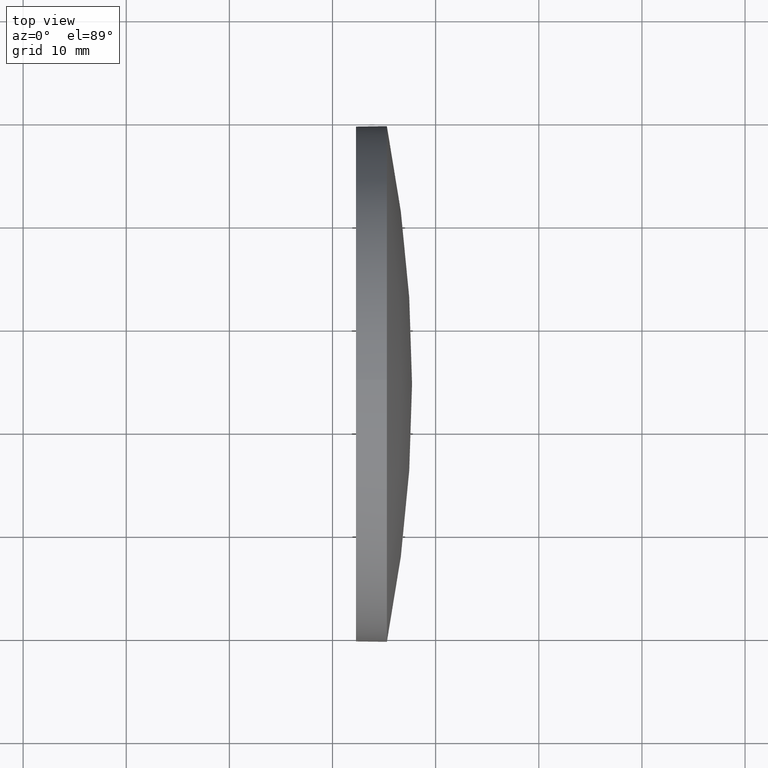
[diagram: clean part render]
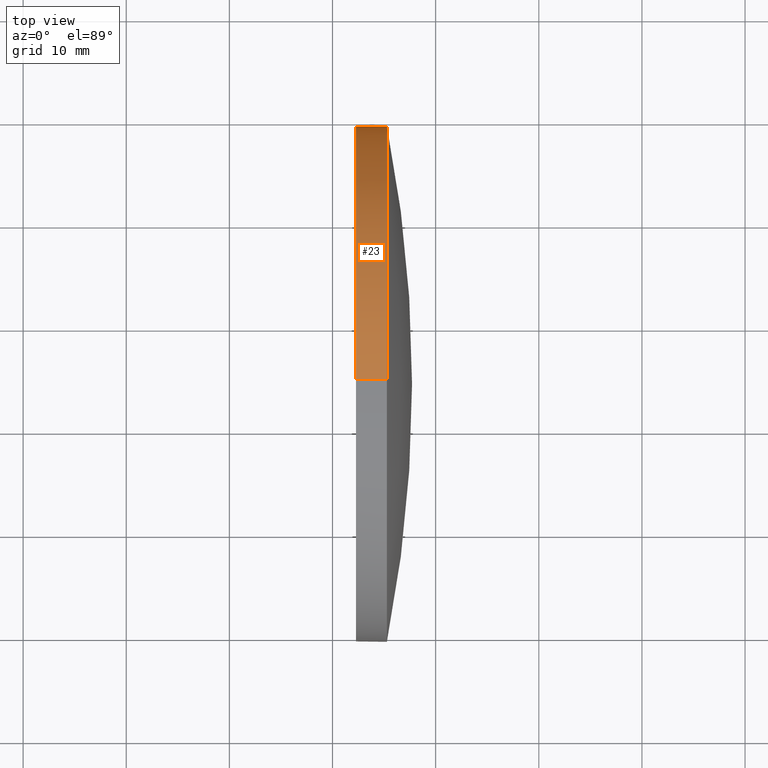
[diagram: same view with one face highlighted and labeled with its STEP entity id]
A machine part, top view. The second image highlights one B-rep face of the part: STEP entity #23.
In plain terms, the highlighted cylindrical surface (partial cylindrical patch) has radius 25 mm, axis along (-1, -0, -0).
Its self-contained STEP definition (entity closure, byte-faithful):
#10 = AXIS2_PLACEMENT_3D ( 'NONE', #171, #130, #116 ) ;
#11 = VERTEX_POINT ( 'NONE', #43 ) ;
#12 = CYLINDRICAL_SURFACE ( 'NONE', #173, 25.00000000000000000 ) ;
#15 = LINE ( 'NONE', #143, #42 ) ;
#16 = DIRECTION ( 'NONE',  ( 0.0000000000000000000, 0.0000000000000000000, 1.000000000000000000 ) ) ;
#17 = DIRECTION ( 'NONE',  ( -1.000000000000000000, -0.0000000000000000000, -0.0000000000000000000 ) ) ;
#18 = CARTESIAN_POINT ( 'NONE',  ( 452.2711816770232100, -45.57836235787573300, 25.00000000000000000 ) ) ;
#23 = ADVANCED_FACE ( 'NONE', ( #92 ), #12, .T. ) ;
#34 = CARTESIAN_POINT ( 'NONE',  ( 455.2711816770232100, -20.57836235787565500, 3.061616997868375200E-015 ) ) ;
#37 = EDGE_CURVE ( 'NONE', #138, #11, #53, .T. ) ;
#38 = CARTESIAN_POINT ( 'NONE',  ( 448.1261699277823700, -45.57836235787573300, 25.00000000000000000 ) ) ;
#42 = VECTOR ( 'NONE', #94, 1000.000000000000000 ) ;
#43 = CARTESIAN_POINT ( 'NONE',  ( 455.2711816770232100, -45.57836235787573300, -25.00000000000000000 ) ) ;
#44 = VERTEX_POINT ( 'NONE', #127 ) ;
#46 = CARTESIAN_POINT ( 'NONE',  ( 452.2711816770232100, -45.57836235787573300, -25.00000000000000000 ) ) ;
#48 = ORIENTED_EDGE ( 'NONE', *, *, #109, .T. ) ;
#53 = CIRCLE ( 'NONE', #61, 25.00000000000000000 ) ;
#61 = AXIS2_PLACEMENT_3D ( 'NONE', #136, #111, #140 ) ;
#71 = ORIENTED_EDGE ( 'NONE', *, *, #161, .F. ) ;
#73 = DIRECTION ( 'NONE',  ( 0.0000000000000000000, 0.0000000000000000000, 1.000000000000000000 ) ) ;
#74 = LINE ( 'NONE', #38, #168 ) ;
#75 = EDGE_LOOP ( 'NONE', ( #157, #169, #71, #110, #48 ) ) ;
#88 = VERTEX_POINT ( 'NONE', #18 ) ;
#89 = EDGE_CURVE ( 'NONE', #11, #147, #15, .T. ) ;
#92 = FACE_OUTER_BOUND ( 'NONE', #75, .T. ) ;
#93 = CIRCLE ( 'NONE', #10, 25.00000000000000000 ) ;
#94 = DIRECTION ( 'NONE',  ( -1.000000000000000000, -0.0000000000000000000, -0.0000000000000000000 ) ) ;
#105 = CIRCLE ( 'NONE', #115, 25.00000000000000000 ) ;
#109 = EDGE_CURVE ( 'NONE', #44, #138, #93, .T. ) ;
#110 = ORIENTED_EDGE ( 'NONE', *, *, #148, .F. ) ;
#111 = DIRECTION ( 'NONE',  ( -1.000000000000000000, -0.0000000000000000000, -0.0000000000000000000 ) ) ;
#112 = CARTESIAN_POINT ( 'NONE',  ( 448.1261699277823700, -45.57836235787573300, 0.0000000000000000000 ) ) ;
#115 = AXIS2_PLACEMENT_3D ( 'NONE', #175, #17, #16 ) ;
#116 = DIRECTION ( 'NONE',  ( 0.0000000000000000000, 0.0000000000000000000, 1.000000000000000000 ) ) ;
#127 = CARTESIAN_POINT ( 'NONE',  ( 455.2711816770232100, -45.57836235787573300, 25.00000000000000000 ) ) ;
#130 = DIRECTION ( 'NONE',  ( -1.000000000000000000, -0.0000000000000000000, -0.0000000000000000000 ) ) ;
#136 = CARTESIAN_POINT ( 'NONE',  ( 455.2711816770232100, -45.57836235787573300, 0.0000000000000000000 ) ) ;
#138 = VERTEX_POINT ( 'NONE', #34 ) ;
#140 = DIRECTION ( 'NONE',  ( 0.0000000000000000000, 0.0000000000000000000, 1.000000000000000000 ) ) ;
#143 = CARTESIAN_POINT ( 'NONE',  ( 448.1261699277823700, -45.57836235787573300, -25.00000000000000000 ) ) ;
#147 = VERTEX_POINT ( 'NONE', #46 ) ;
#148 = EDGE_CURVE ( 'NONE', #44, #88, #74, .T. ) ;
#157 = ORIENTED_EDGE ( 'NONE', *, *, #37, .T. ) ;
#161 = EDGE_CURVE ( 'NONE', #88, #147, #105, .T. ) ;
#168 = VECTOR ( 'NONE', #176, 1000.000000000000000 ) ;
#169 = ORIENTED_EDGE ( 'NONE', *, *, #89, .T. ) ;
#171 = CARTESIAN_POINT ( 'NONE',  ( 455.2711816770232100, -45.57836235787573300, 0.0000000000000000000 ) ) ;
#173 = AXIS2_PLACEMENT_3D ( 'NONE', #112, #180, #73 ) ;
#175 = CARTESIAN_POINT ( 'NONE',  ( 452.2711816770232100, -45.57836235787573300, 0.0000000000000000000 ) ) ;
#176 = DIRECTION ( 'NONE',  ( -1.000000000000000000, -0.0000000000000000000, -0.0000000000000000000 ) ) ;
#180 = DIRECTION ( 'NONE',  ( -1.000000000000000000, -0.0000000000000000000, -0.0000000000000000000 ) ) ;